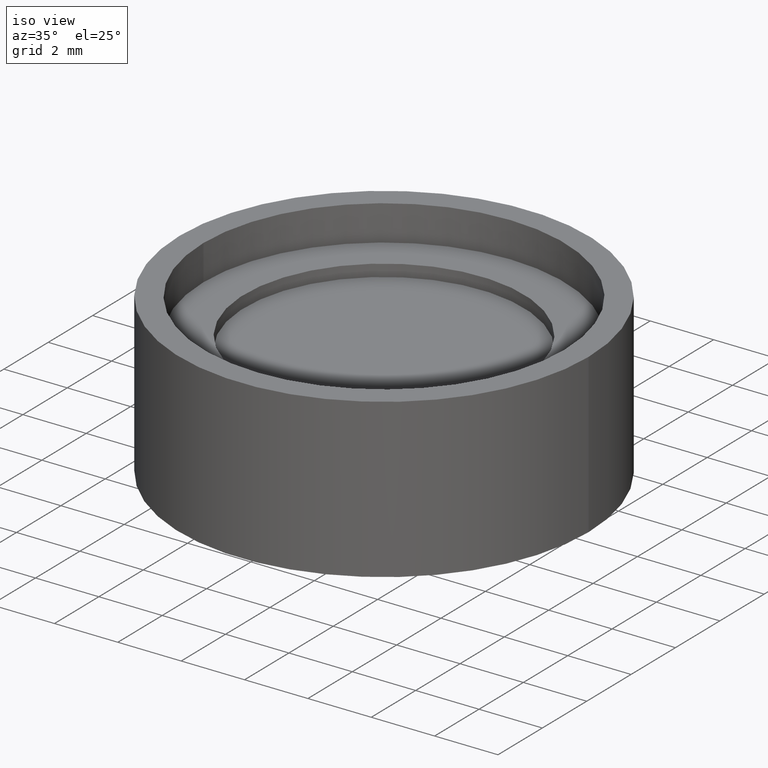
[diagram: clean part render]
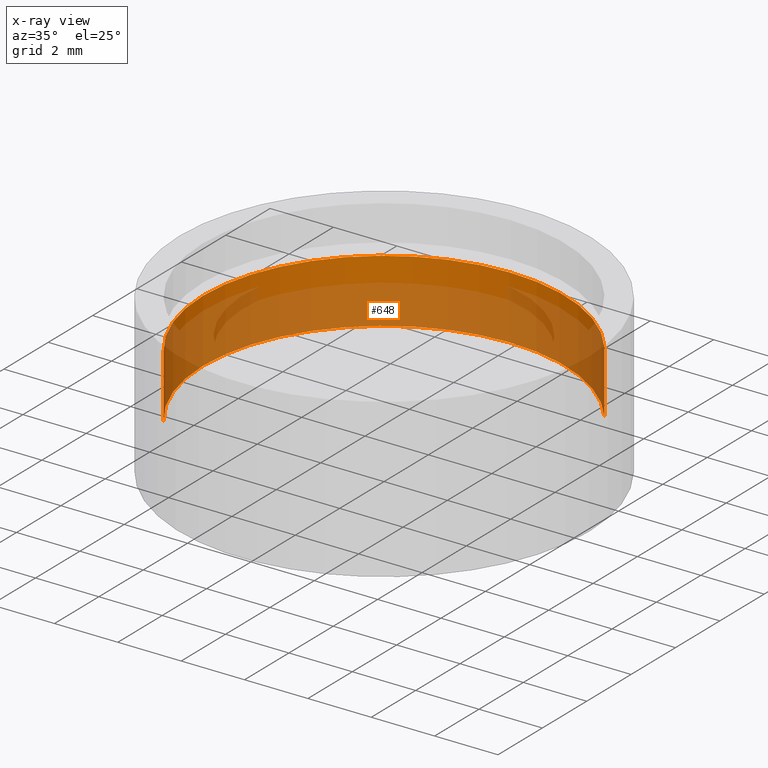
[diagram: x-ray — body ghosted, one internal face saturated and labeled with its STEP entity id]
A machine part, iso view, then the same camera in x-ray: the body is ghosted and one INTERNAL B-rep face — a face not visible from any outside direction — is saturated and labeled: STEP entity #648.
In plain terms, the highlighted cylindrical surface (partial cylindrical patch) has radius 5.7 mm, axis along (0, 0, -1).
Its self-contained STEP definition (entity closure, byte-faithful):
#63 = DIRECTION ( 'NONE',  ( 0.8068447097065265528, 0.5907635858942146267, 0.0000000000000000000 ) ) ;
#91 = EDGE_CURVE ( 'NONE', #272, #557, #238, .T. ) ;
#109 = ORIENTED_EDGE ( 'NONE', *, *, #217, .T. ) ;
#140 = CARTESIAN_POINT ( 'NONE',  ( 4.599014845327200618, 3.367352439597023572, 2.380999999999999339 ) ) ;
#167 = CARTESIAN_POINT ( 'NONE',  ( -4.599014845327200618, -3.367352439597023128, 0.3810000000000000053 ) ) ;
#176 = VECTOR ( 'NONE', #591, 1000.000000000000000 ) ;
#197 = ORIENTED_EDGE ( 'NONE', *, *, #328, .T. ) ;
#202 = DIRECTION ( 'NONE',  ( 0.8068447097065265528, 0.5907635858942146267, 0.0000000000000000000 ) ) ;
#209 = CARTESIAN_POINT ( 'NONE',  ( 0.0000000000000000000, 0.0000000000000000000, 2.380999999999999339 ) ) ;
#217 = EDGE_CURVE ( 'NONE', #496, #601, #335, .T. ) ;
#218 = CARTESIAN_POINT ( 'NONE',  ( 0.0000000000000000000, 0.0000000000000000000, 2.380999999999999339 ) ) ;
#232 = EDGE_LOOP ( 'NONE', ( #608, #109, #197, #646 ) ) ;
#238 = LINE ( 'NONE', #385, #176 ) ;
#272 = VERTEX_POINT ( 'NONE', #457 ) ;
#279 = AXIS2_PLACEMENT_3D ( 'NONE', #610, #308, #63 ) ;
#295 = CARTESIAN_POINT ( 'NONE',  ( 4.599014845327200618, 3.367352439597023572, 0.3810000000000000053 ) ) ;
#307 = DIRECTION ( 'NONE',  ( 0.0000000000000000000, 0.0000000000000000000, 1.000000000000000000 ) ) ;
#308 = DIRECTION ( 'NONE',  ( 0.0000000000000000000, 0.0000000000000000000, 1.000000000000000000 ) ) ;
#310 = CIRCLE ( 'NONE', #481, 5.699999999999999289 ) ;
#311 = DIRECTION ( 'NONE',  ( -0.8068447097065265528, -0.5907635858942146267, 0.0000000000000000000 ) ) ;
#328 = EDGE_CURVE ( 'NONE', #601, #557, #515, .T. ) ;
#335 = LINE ( 'NONE', #140, #435 ) ;
#385 = CARTESIAN_POINT ( 'NONE',  ( -4.599014845327200618, -3.367352439597023128, 2.380999999999999339 ) ) ;
#411 = EDGE_CURVE ( 'NONE', #496, #272, #310, .T. ) ;
#427 = AXIS2_PLACEMENT_3D ( 'NONE', #218, #653, #311 ) ;
#435 = VECTOR ( 'NONE', #536, 1000.000000000000000 ) ;
#457 = CARTESIAN_POINT ( 'NONE',  ( -4.599014845327200618, -3.367352439597023128, 2.380999999999999339 ) ) ;
#459 = CYLINDRICAL_SURFACE ( 'NONE', #427, 5.699999999999999289 ) ;
#481 = AXIS2_PLACEMENT_3D ( 'NONE', #209, #307, #202 ) ;
#496 = VERTEX_POINT ( 'NONE', #563 ) ;
#515 = CIRCLE ( 'NONE', #279, 5.699999999999999289 ) ;
#536 = DIRECTION ( 'NONE',  ( 0.0000000000000000000, 0.0000000000000000000, -1.000000000000000000 ) ) ;
#557 = VERTEX_POINT ( 'NONE', #167 ) ;
#563 = CARTESIAN_POINT ( 'NONE',  ( 4.599014845327200618, 3.367352439597023572, 2.380999999999999339 ) ) ;
#591 = DIRECTION ( 'NONE',  ( 0.0000000000000000000, 0.0000000000000000000, -1.000000000000000000 ) ) ;
#601 = VERTEX_POINT ( 'NONE', #295 ) ;
#608 = ORIENTED_EDGE ( 'NONE', *, *, #411, .F. ) ;
#610 = CARTESIAN_POINT ( 'NONE',  ( 0.0000000000000000000, 0.0000000000000000000, 0.3810000000000000053 ) ) ;
#612 = FACE_OUTER_BOUND ( 'NONE', #232, .T. ) ;
#646 = ORIENTED_EDGE ( 'NONE', *, *, #91, .F. ) ;
#648 = ADVANCED_FACE ( 'NONE', ( #612 ), #459, .T. ) ;
#653 = DIRECTION ( 'NONE',  ( 0.0000000000000000000, 0.0000000000000000000, -1.000000000000000000 ) ) ;